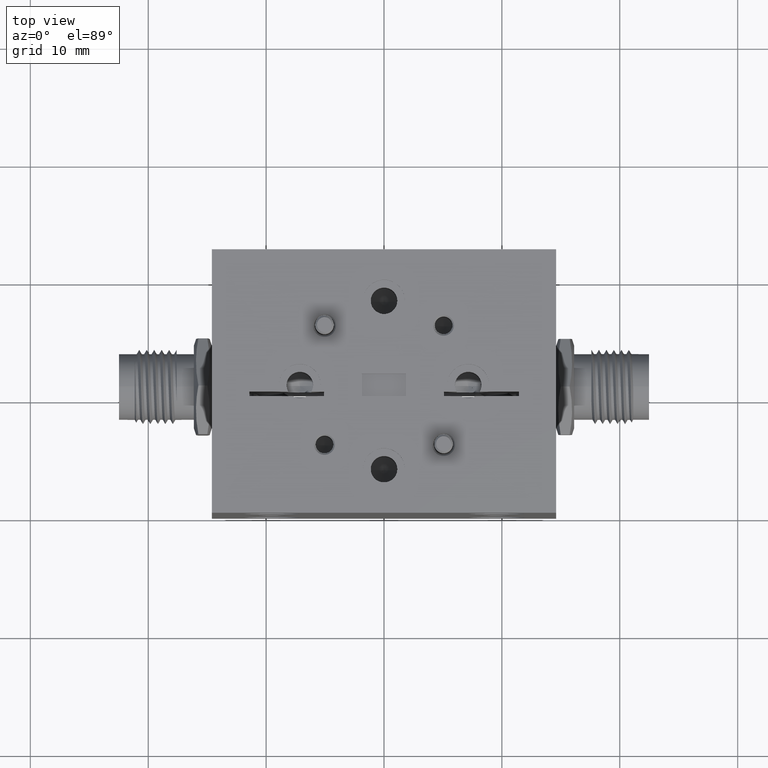
[diagram: clean part render]
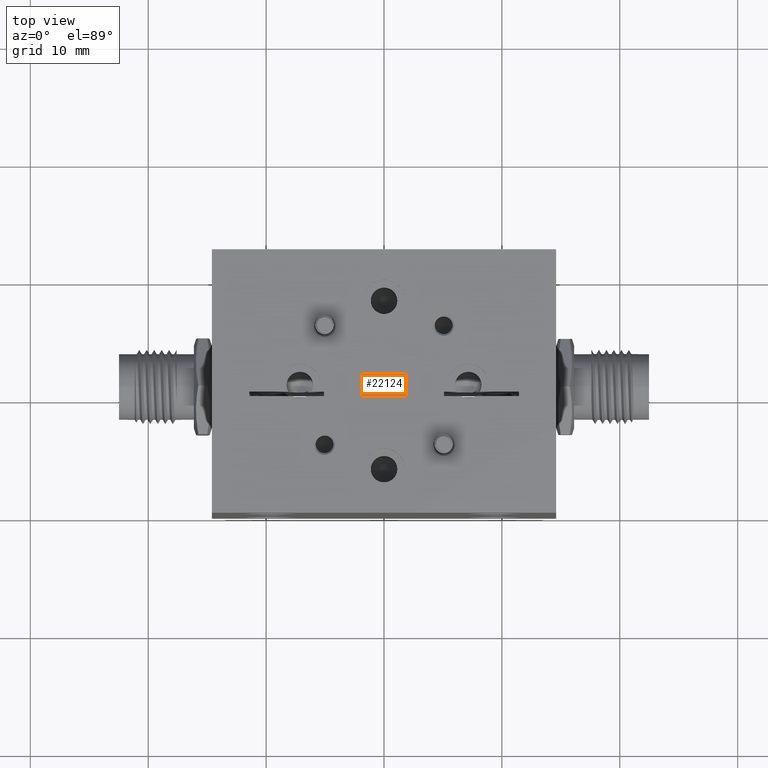
[diagram: same view with one face highlighted and labeled with its STEP entity id]
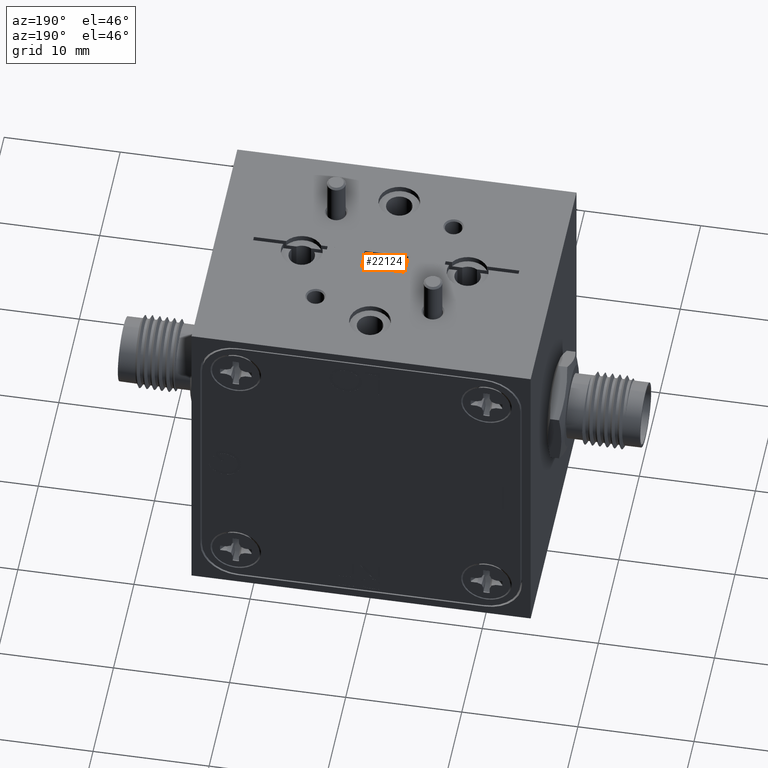
[diagram: same view with one face highlighted and labeled with its STEP entity id]
A machine part, top view. The second image highlights one B-rep face of the part: STEP entity #22124.
A second angle (auxiliary view) of the same face is appended — the face is thin or edge-on in the first view.
In plain terms, the highlighted planar face has unit normal (-0, 0, 1).
Its self-contained STEP definition (entity closure, byte-faithful):
#35 = CARTESIAN_POINT ( 'NONE',  ( 0.07400000000000003797, 0.0000000000000000000, 0.5650000000000002798 ) ) ;
#865 = CARTESIAN_POINT ( 'NONE',  ( -0.07400000000000001021, 0.0000000000000000000, 0.5650000000000002798 ) ) ;
#869 = EDGE_CURVE ( 'NONE', #18219, #8429, #33779, .T. ) ;
#1094 = VECTOR ( 'NONE', #34782, 39.37007874015748143 ) ;
#2960 = DIRECTION ( 'NONE',  ( 0.0000000000000000000, -1.000000000000000000, 0.0000000000000000000 ) ) ;
#4866 = DIRECTION ( 'NONE',  ( 1.000000000000000000, 0.0000000000000000000, 0.0000000000000000000 ) ) ;
#6801 = LINE ( 'NONE', #11188, #41732 ) ;
#8091 = VERTEX_POINT ( 'NONE', #865 ) ;
#8429 = VERTEX_POINT ( 'NONE', #26507 ) ;
#10154 = ORIENTED_EDGE ( 'NONE', *, *, #869, .T. ) ;
#11188 = CARTESIAN_POINT ( 'NONE',  ( -0.07400000000000001021, 0.0000000000000000000, 0.5650000000000002798 ) ) ;
#12508 = EDGE_LOOP ( 'NONE', ( #37443, #10154, #22301, #35050 ) ) ;
#13050 = CARTESIAN_POINT ( 'NONE',  ( -0.07400000000000001021, 0.4900787401574802638, 0.5650000000000002798 ) ) ;
#13077 = DIRECTION ( 'NONE',  ( -0.0000000000000000000, 0.0000000000000000000, 1.000000000000000000 ) ) ;
#13987 = EDGE_CURVE ( 'NONE', #18219, #39170, #42276, .T. ) ;
#18219 = VERTEX_POINT ( 'NONE', #36091 ) ;
#18381 = CARTESIAN_POINT ( 'NONE',  ( 0.07400000000000003797, 0.4900787401574802638, 0.5650000000000002798 ) ) ;
#19107 = CARTESIAN_POINT ( 'NONE',  ( -0.07400000000000001021, 0.07400000000000007960, 0.5650000000000002798 ) ) ;
#21313 = PLANE ( 'NONE',  #26457 ) ;
#22124 = ADVANCED_FACE ( 'NONE', ( #40065 ), #21313, .T. ) ;
#22154 = VECTOR ( 'NONE', #40791, 39.37007874015748143 ) ;
#22301 = ORIENTED_EDGE ( 'NONE', *, *, #49445, .T. ) ;
#24653 = CARTESIAN_POINT ( 'NONE',  ( -0.07400000000000001021, 0.4900787401574802638, 0.5650000000000002798 ) ) ;
#26457 = AXIS2_PLACEMENT_3D ( 'NONE', #24653, #13077, #4866 ) ;
#26507 = CARTESIAN_POINT ( 'NONE',  ( -0.07400000000000001021, 0.07400000000000007960, 0.5650000000000002798 ) ) ;
#27487 = VECTOR ( 'NONE', #2960, 39.37007874015748143 ) ;
#33779 = LINE ( 'NONE', #19107, #1094 ) ;
#34568 = DIRECTION ( 'NONE',  ( -1.000000000000000000, -0.0000000000000000000, -0.0000000000000000000 ) ) ;
#34782 = DIRECTION ( 'NONE',  ( -1.000000000000000000, 0.0000000000000000000, -0.0000000000000000000 ) ) ;
#35050 = ORIENTED_EDGE ( 'NONE', *, *, #46924, .F. ) ;
#36091 = CARTESIAN_POINT ( 'NONE',  ( 0.07400000000000003797, 0.07400000000000007960, 0.5650000000000002798 ) ) ;
#37443 = ORIENTED_EDGE ( 'NONE', *, *, #13987, .F. ) ;
#39170 = VERTEX_POINT ( 'NONE', #35 ) ;
#40065 = FACE_OUTER_BOUND ( 'NONE', #12508, .T. ) ;
#40791 = DIRECTION ( 'NONE',  ( 0.0000000000000000000, -1.000000000000000000, 0.0000000000000000000 ) ) ;
#41732 = VECTOR ( 'NONE', #34568, 39.37007874015748143 ) ;
#42276 = LINE ( 'NONE', #18381, #27487 ) ;
#46924 = EDGE_CURVE ( 'NONE', #39170, #8091, #6801, .T. ) ;
#48751 = LINE ( 'NONE', #13050, #22154 ) ;
#49445 = EDGE_CURVE ( 'NONE', #8429, #8091, #48751, .T. ) ;